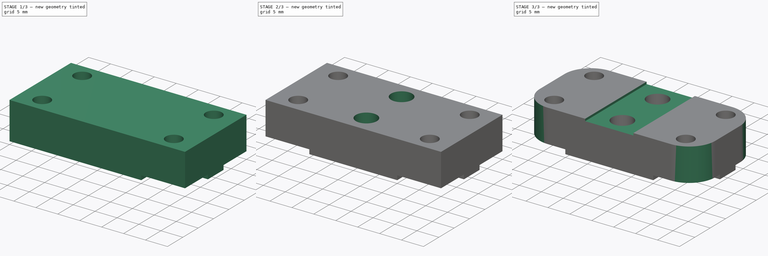
[diagram: build sequence overview — one tinted view per stage of 3, left to right]
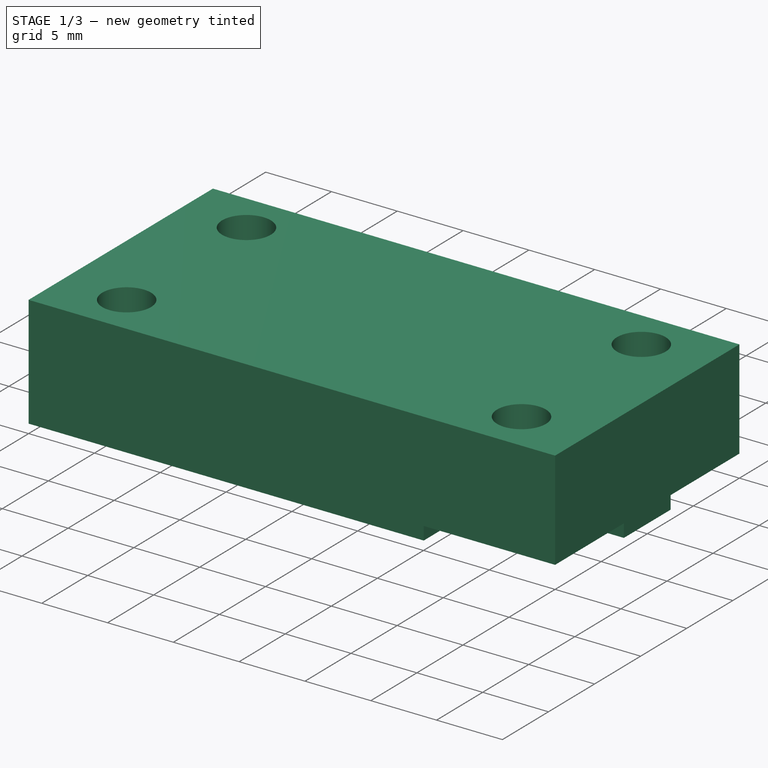
[diagram: stage 1 of 3 — iso view after this stage's code; geometry added in this stage tinted green]
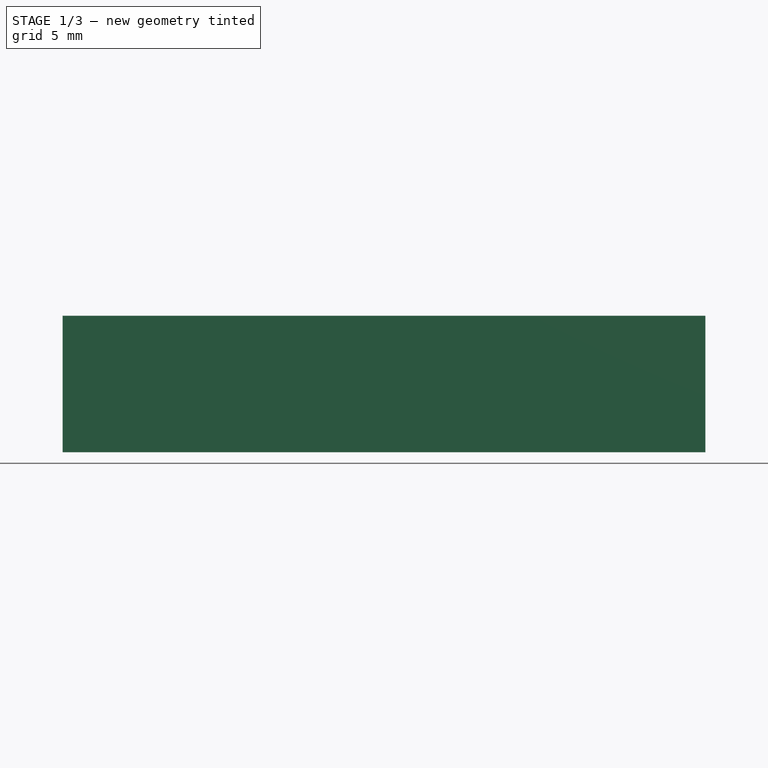
[diagram: stage 1 of 3 — front view after this stage's code; geometry added in this stage tinted green]
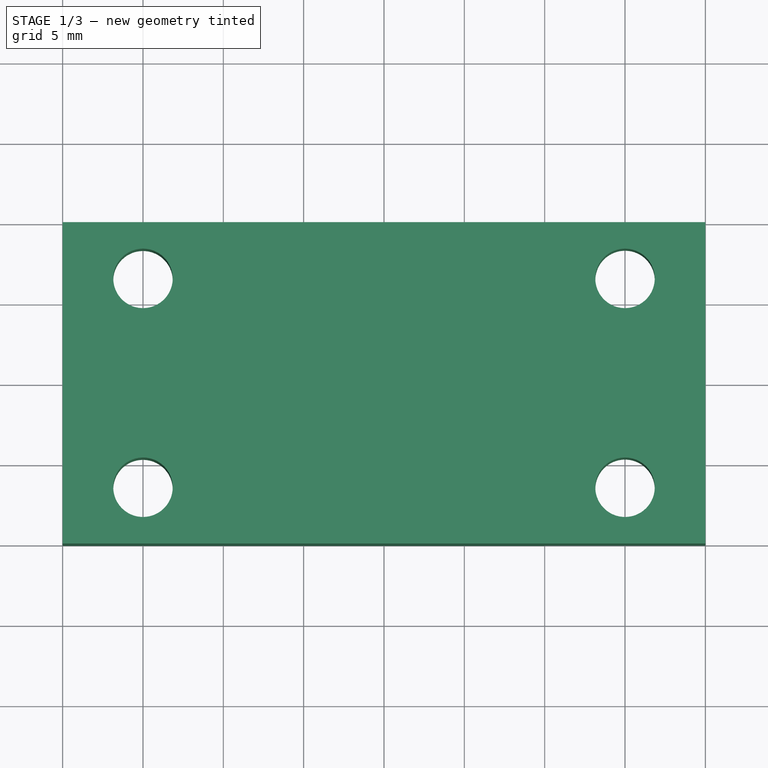
[diagram: stage 1 of 3 — top view after this stage's code; geometry added in this stage tinted green]
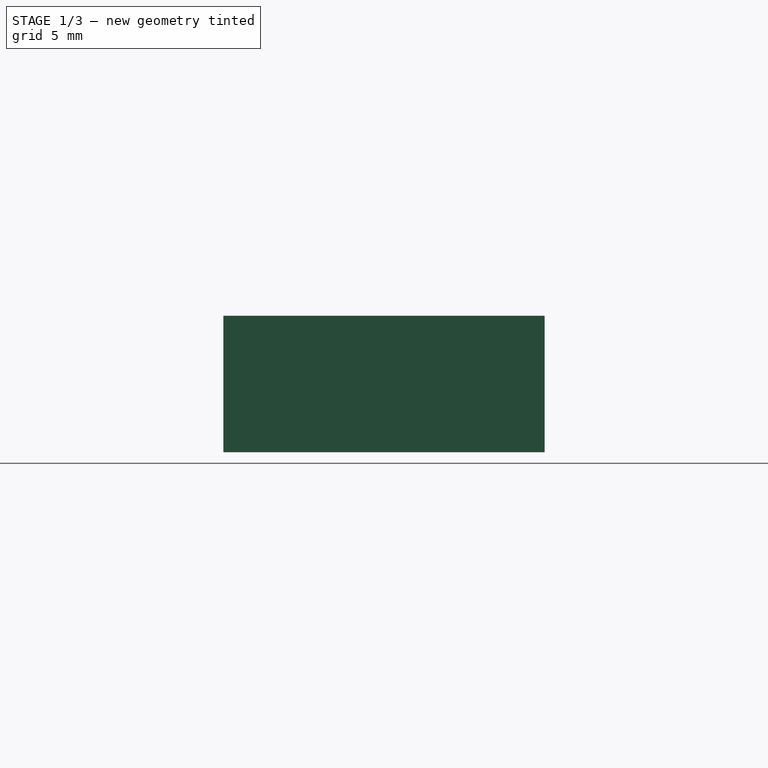
[diagram: stage 1 of 3 — right view after this stage's code; geometry added in this stage tinted green]
FCSTD DOCUMENT  (FreeCAD 1.0R38641 +468 (Git))
Label: tof_cable_managemen_toolhead
License: All rights reserved
LicenseURL: https://en.wikipedia.org/wiki/All_rights_reserved
objects: Sketcher::SketchObject×4, PartDesign::Pocket×3, PartDesign::Plane×2, PartDesign::Pad×1, PartDesign::Mirrored×1, PartDesign::Fillet×1, PartDesign::Body×1
note: 28 computed .brp shape members not serialized (recipe doc carries the construction recipe); baked Part::Feature solids carry a one-line shape summary decoded from their .brp

FEATURE [Sketcher::SketchObject] Sketch
  ArcFitTolerance = 1e-06
  FullyConstrained = true
  MakeInternals = false
  sketch-geometry (14):
    g0: LineSegment [constr] StartX=-15 StartY=-6.5 StartZ=0 EndX=15 EndY=-6.5 EndZ=0
    g1: LineSegment [constr] StartX=15 StartY=-6.5 StartZ=0 EndX=15 EndY=6.5 EndZ=0
    g2: LineSegment [constr] StartX=15 StartY=6.5 StartZ=0 EndX=-15 EndY=6.5 EndZ=0
    g3: LineSegment [constr] StartX=-15 StartY=6.5 StartZ=0 EndX=-15 EndY=-6.5 EndZ=0
    g4: GeomPoint [constr] X=0 Y=0 Z=0
    g5: Circle CenterX=-15 CenterY=6.5 CenterZ=0 NormalX=0 NormalY=0 NormalZ=1 AngleXU=0 Radius=1.85
    g6: Circle CenterX=15 CenterY=6.5 CenterZ=0 NormalX=0 NormalY=0 NormalZ=1 AngleXU=0 Radius=1.85
    g7: Circle CenterX=15 CenterY=-6.5 CenterZ=0 NormalX=0 NormalY=0 NormalZ=1 AngleXU=0 Radius=1.85
    g8: Circle CenterX=-15 CenterY=-6.5 CenterZ=0 NormalX=0 NormalY=0 NormalZ=1 AngleXU=0 Radius=1.85
    g9: LineSegment StartX=-20 StartY=-10 StartZ=0 EndX=20 EndY=-10 EndZ=0
    g10: LineSegment StartX=20 StartY=-10 StartZ=0 EndX=20 EndY=10 EndZ=0
    g11: LineSegment StartX=20 StartY=10 StartZ=0 EndX=-20 EndY=10 EndZ=0
    g12: LineSegment StartX=-20 StartY=10 StartZ=0 EndX=-20 EndY=-10 EndZ=0
    g13: GeomPoint [constr] X=0 Y=0 Z=0
  constraints (32):
    c: Coincident(g0,g1)
    c: Coincident(g1,g2)
    c: Coincident(g2,g3)
    c: Coincident(g3,g0)
    c: Horizontal(g0)
    c: Horizontal(g2)
    c: Vertical(g1)
    c: Vertical(g3)
    c: Symmetric(g2,g0,g4)
    c: Distance(g1,g3) = 30
    c: Distance(g0,g2) = 13
    c: Coincident(g4,g-1)
    c: Coincident(g5,g2)
    c: Coincident(g6,g1)
    c: Coincident(g7,g0)
    c: Coincident(g8,g0)
    c: Equal(g5,g6)
    c: Equal(g6,g7)
    c: Equal(g7,g8)
    c: Diameter(g6) = 3.7
    c: Coincident(g9,g10)
    c: Coincident(g10,g11)
    c: Coincident(g11,g12)
    c: Coincident(g12,g9)
    c: Horizontal(g9)
    c: Horizontal(g11)
    c: Vertical(g10)
    c: Vertical(g12)
    c: Symmetric(g11,g9,g13)
    c: Distance(g10,g12) = 40
    c: Distance(g9,g11) = 20
    c: Coincident(g13,g4)
FEATURE [PartDesign::Pad] Pad
  Direction = (0,0,1)
  Length = 8.5
  Length2 = 10
  Profile = -> Sketch
  ReferenceAxis = -> Sketch [N_Axis]
  Refine = true
  Suppressed = false
  Type = 0
FEATURE [Sketcher::SketchObject] Sketch002
  ArcFitTolerance = 1e-06
  ExternalGeometry = -> [Pad]
  FullyConstrained = false
  MakeInternals = false
  MapMode = 5
  Placement = pos=(0,0,0) rot=(1,0,0;3.14159rad)
  sketch-geometry (8):
    g0: LineSegment StartX=20 StartY=13.7171 StartZ=0 EndX=10.0208 EndY=11.7214 EndZ=0
    g1: LineSegment StartX=10.0208 StartY=11.7214 StartZ=0 EndX=10.0208 EndY=2.53842 EndZ=0
    g2: LineSegment StartX=10.0208 StartY=2.53842 StartZ=0 EndX=20 EndY=2.53842 EndZ=0
    g3: LineSegment StartX=20 StartY=2.53842 StartZ=0 EndX=20 EndY=13.7171 EndZ=0
    g4: LineSegment StartX=10.0208 StartY=-2.53842 StartZ=0 EndX=20 EndY=-2.53842 EndZ=0
    g5: LineSegment StartX=20 StartY=-2.53842 StartZ=0 EndX=20 EndY=-12.7061 EndZ=0
    g6: LineSegment StartX=20 StartY=-12.7061 StartZ=0 EndX=10.0208 EndY=-11.7214 EndZ=0
    g7: LineSegment StartX=10.0208 StartY=-11.7214 StartZ=0 EndX=10.0208 EndY=-2.53842 EndZ=0
  constraints (18):
    c: Coincident(g0,g1)
    c: Vertical(g1)
    c: Coincident(g1,g2)
    c: Horizontal(g2)
    c: Coincident(g2,g3)
    c: Coincident(g3,g0)
    c: Vertical(g3)
    c: Coincident(g4,g5)
    c: Coincident(g5,g6)
    c: Coincident(g6,g7)
    c: Coincident(g7,g4)
    c: Vertical(g7)
    c: Horizontal(g4)
    c: Symmetric(g4,g2,g-1)
    c: Vertical(g1,g4)
    c: Vertical(g5)
    c: PointOnObject(g2,g-3)
    c: Equal(g7,g1)
FEATURE [PartDesign::Pocket] Pocket001
  BaseFeature = -> Pad
  Direction = (0,0,1)
  Length = 1
  Length2 = 5
  Profile = -> Sketch002
  ReferenceAxis = -> Sketch002 [N_Axis]
  Refine = true
  Suppressed = false
  Type = 0
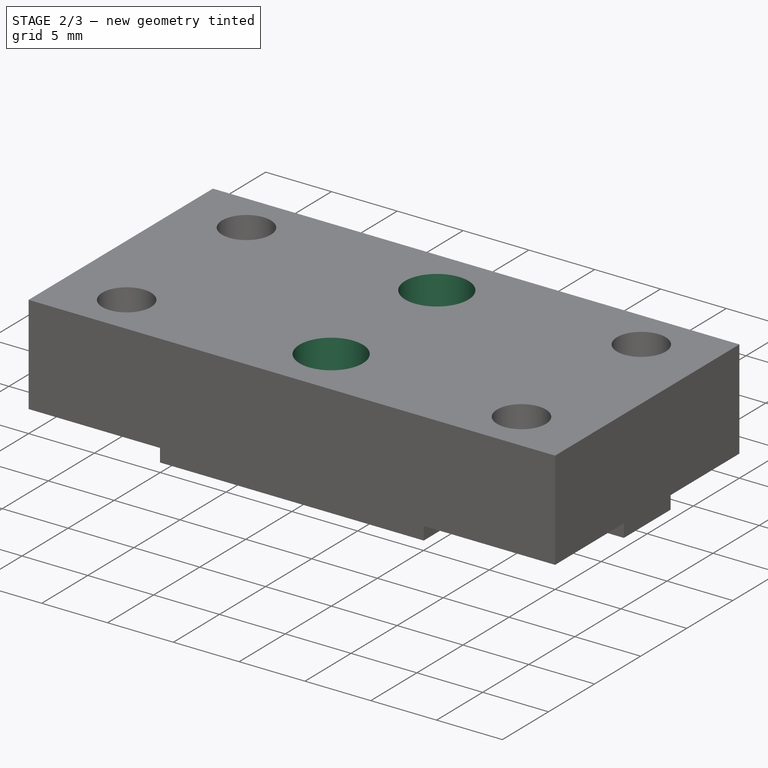
[diagram: stage 2 of 3 — iso view after this stage's code; geometry added in this stage tinted green]
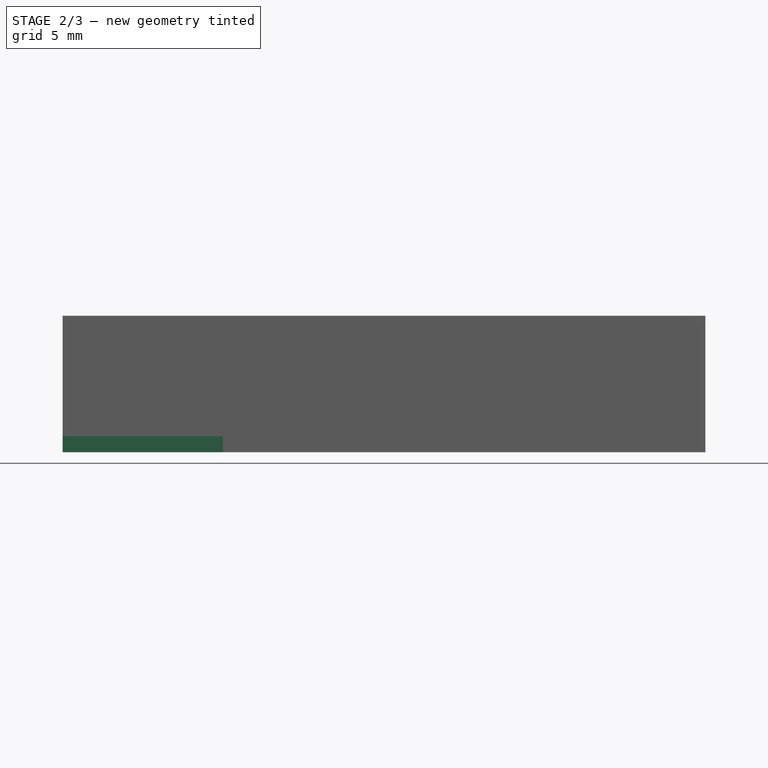
[diagram: stage 2 of 3 — front view after this stage's code; geometry added in this stage tinted green]
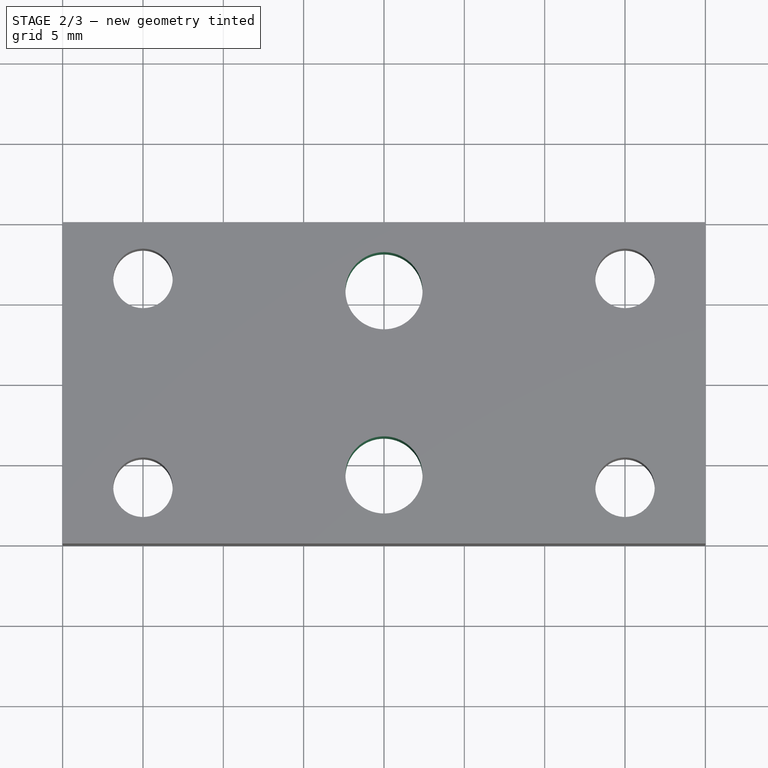
[diagram: stage 2 of 3 — top view after this stage's code; geometry added in this stage tinted green]
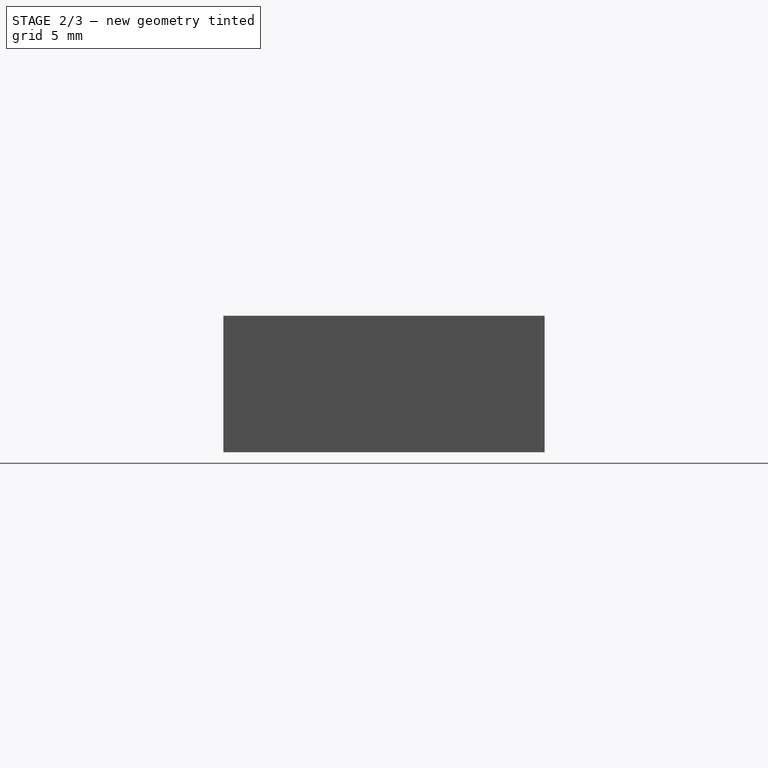
[diagram: stage 2 of 3 — right view after this stage's code; geometry added in this stage tinted green]
FEATURE [PartDesign::Mirrored] Mirrored
  BaseFeature = -> Pocket001
  MirrorPlane = -> Sketch002 [V_Axis]
  Originals = -> [Pocket001]
  Refine = true
  Suppressed = false
  TransformMode = 0
FEATURE [PartDesign::Plane] DatumPlane
  AttachmentSupport = -> [Mirrored]
  Length = 60
  MapMode = 5
  Placement = pos=(0,0,0) rot=(1,0,0;3.14159rad)
  ResizeMode = 0
  Width = 60
FEATURE [Sketcher::SketchObject] Sketch003
  ArcFitTolerance = 1e-06
  AttachmentSupport = -> [DatumPlane]
  FullyConstrained = false
  MakeInternals = false
  MapMode = 5
  Placement = pos=(0,0,0) rot=(1,0,0;3.14159rad)
  sketch-geometry (2):
    g0: Circle CenterX=0 CenterY=5.73236 CenterZ=0 NormalX=0 NormalY=0 NormalZ=1 AngleXU=0 Radius=2.4
    g1: Circle CenterX=0 CenterY=-5.73236 CenterZ=0 NormalX=0 NormalY=0 NormalZ=1 AngleXU=0 Radius=2.4
  constraints (4):
    c: PointOnObject(g0,g-2)
    c: Symmetric(g1,g0,g-1)
    c: Equal(g1,g0)
    c: Diameter(g0) = 4.8
FEATURE [PartDesign::Pocket] Pocket
  BaseFeature = -> Mirrored
  Direction = (0,0,1)
  Length = 5
  Length2 = 5
  Profile = -> Sketch003
  ReferenceAxis = -> Sketch003 [N_Axis]
  Refine = true
  Suppressed = false
  Type = 1
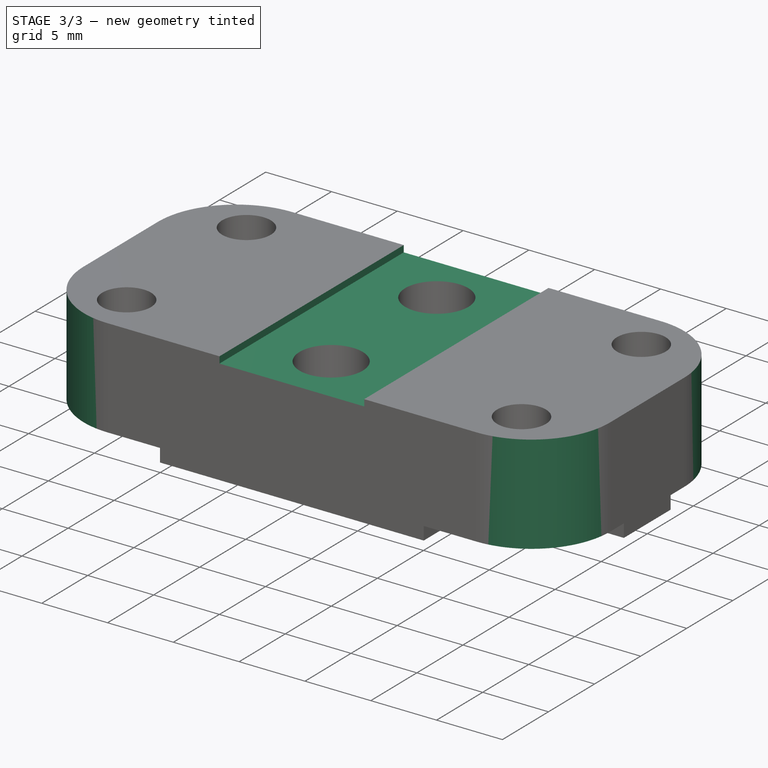
[diagram: stage 3 of 3 — iso view after this stage's code; geometry added in this stage tinted green]
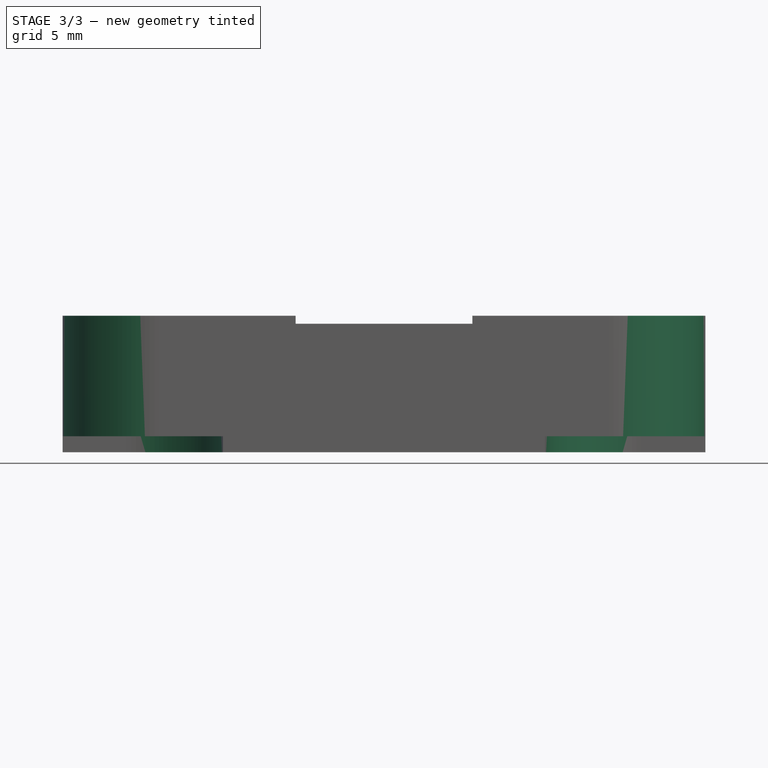
[diagram: stage 3 of 3 — front view after this stage's code; geometry added in this stage tinted green]
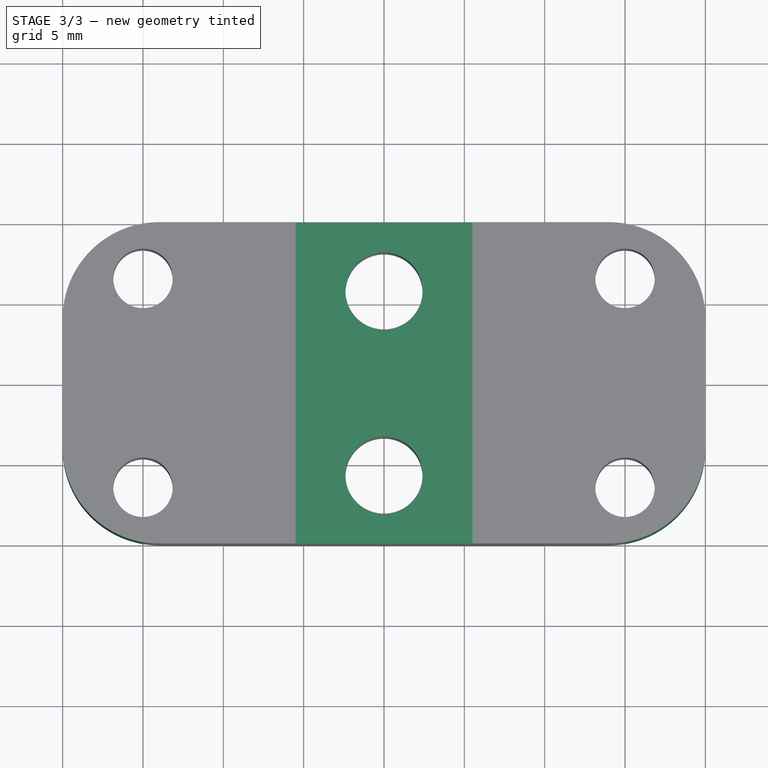
[diagram: stage 3 of 3 — top view after this stage's code; geometry added in this stage tinted green]
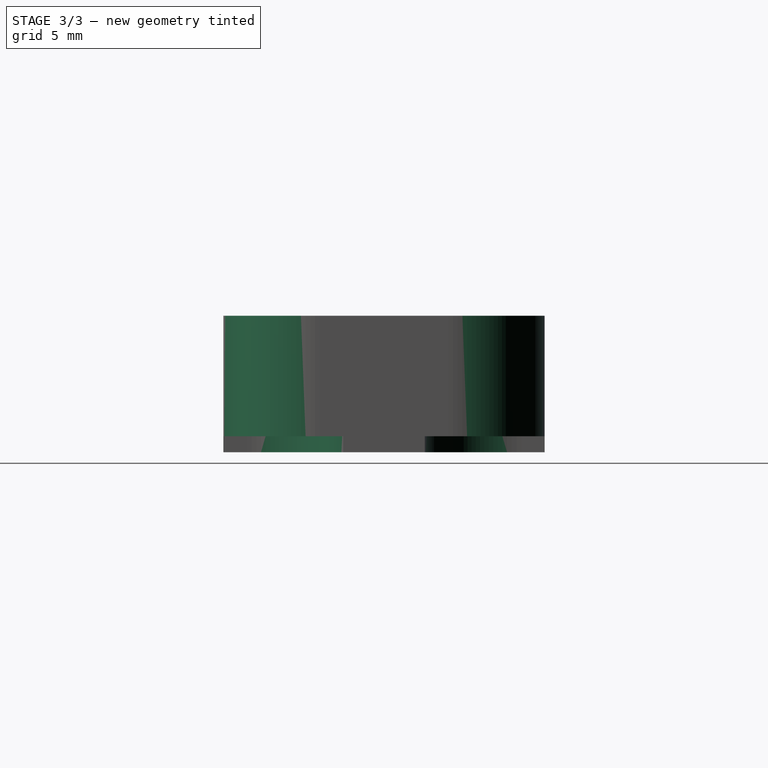
[diagram: stage 3 of 3 — right view after this stage's code; geometry added in this stage tinted green]
FEATURE [PartDesign::Plane] DatumPlane001
  AttachmentSupport = -> [Pocket]
  Length = 60
  MapMode = 5
  Placement = pos=(0,10,0) rot=(0,0.707107,0.707107;3.14159rad)
  ResizeMode = 0
  Width = 60
FEATURE [Sketcher::SketchObject] Sketch004
  ArcFitTolerance = 1e-06
  AttachmentSupport = -> [DatumPlane001]
  ExternalGeometry = -> [Pocket]
  FullyConstrained = true
  MakeInternals = false
  MapMode = 5
  Placement = pos=(0,10,0) rot=(0,0.707107,0.707107;3.14159rad)
  sketch-geometry (5):
    g0: LineSegment StartX=-5.5 StartY=9 StartZ=0 EndX=-5.5 EndY=8 EndZ=0
    g1: LineSegment StartX=-5.5 StartY=8 StartZ=0 EndX=5.5 EndY=8 EndZ=0
    g2: LineSegment StartX=5.5 StartY=8 StartZ=0 EndX=5.5 EndY=9 EndZ=0
    g3: LineSegment StartX=5.5 StartY=9 StartZ=0 EndX=-5.5 EndY=9 EndZ=0
    g4: GeomPoint [constr] X=0 Y=8.5 Z=0
  constraints (13):
    c: Coincident(g0,g1)
    c: Coincident(g1,g2)
    c: Coincident(g2,g3)
    c: Coincident(g3,g0)
    c: Vertical(g0)
    c: Vertical(g2)
    c: Horizontal(g1)
    c: Horizontal(g3)
    c: Symmetric(g2,g0,g4)
    c: PointOnObject(g4,g-2)
    c: PointOnObject(g4,g-3)
    c: DistanceY(g2,g2) = 1
    c: DistanceX(g3,g3) = 11
FEATURE [PartDesign::Pocket] Pocket002
  BaseFeature = -> Pocket
  Direction = (0,-1,2e-16)
  Length = 5
  Length2 = 5
  Profile = -> Sketch004
  ReferenceAxis = -> Sketch004 [N_Axis]
  Refine = true
  Suppressed = false
  Type = 1
FEATURE [PartDesign::Fillet] Fillet
  Base = -> Pocket002 [Edge61,Edge60,Edge26,Edge68,Edge34,Edge4,Edge10,Edge56]
  BaseFeature = -> Pocket002
  Radius = 6
  Refine = true
  SupportTransform = false
  Suppressed = false
  UseAllEdges = false
FEATURE [PartDesign::Body] Body
  AllowCompound = false
  Group = -> [Sketch,Pad,Sketch002,Pocket001,Mirrored,DatumPlane,Sketch003,Pocket,DatumPlane001,Sketch004,Pocket002,Fillet]
  Origin = -> Origin
  Tip = -> Fillet
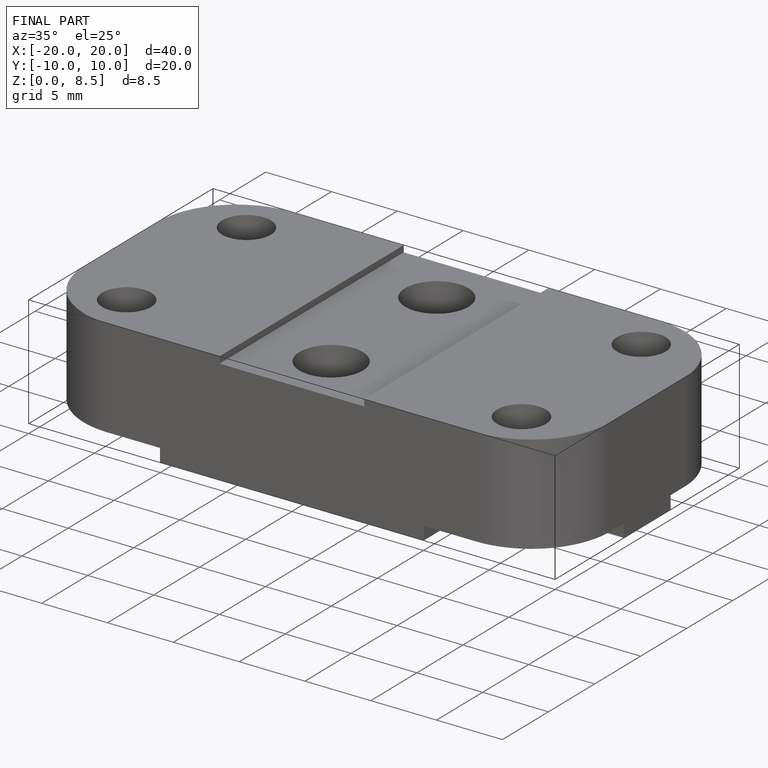
[diagram: finished part — iso view with bounding-box wireframe]
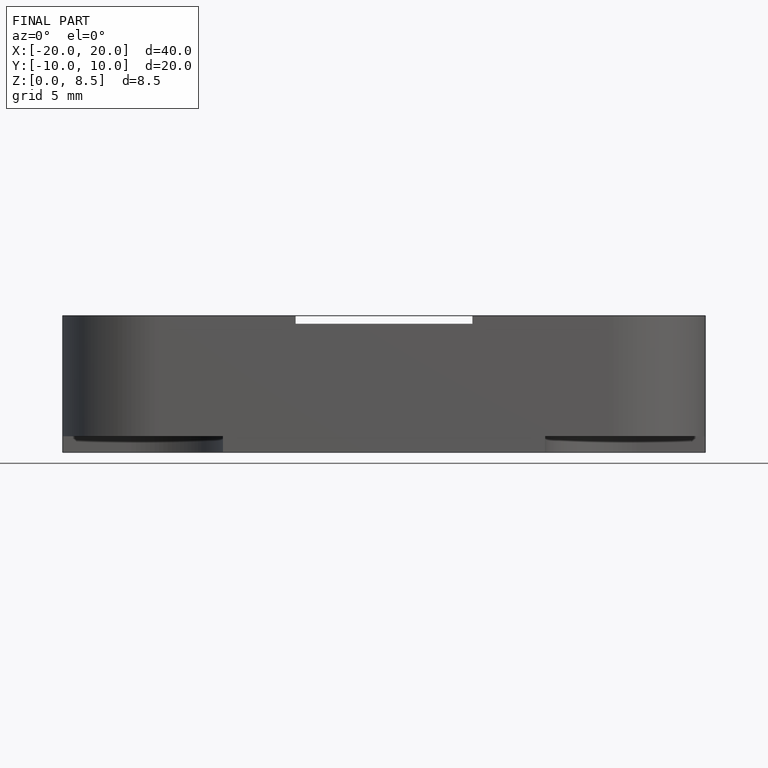
[diagram: finished part — front view with bounding-box wireframe]
